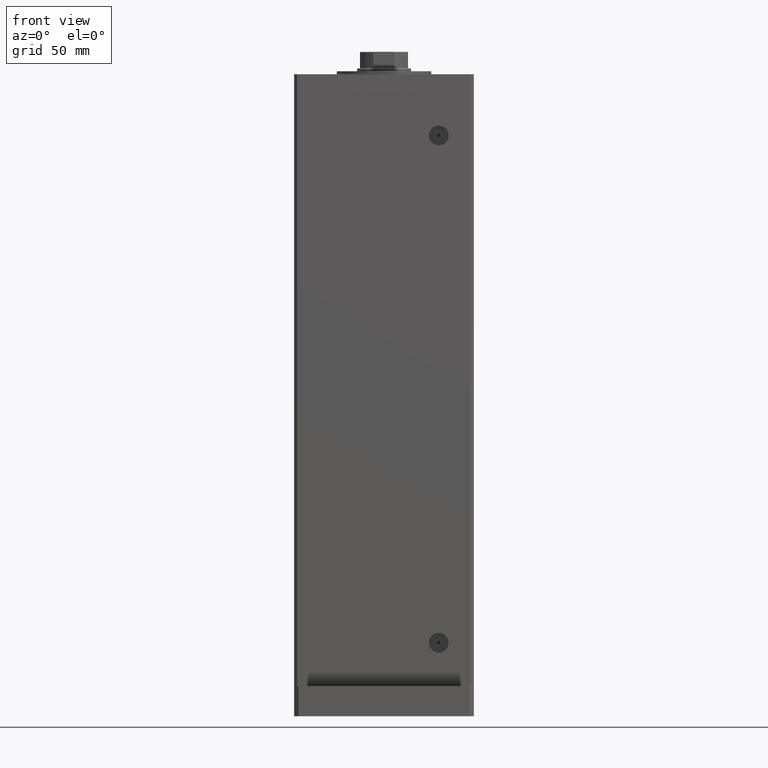
[diagram: clean part render]
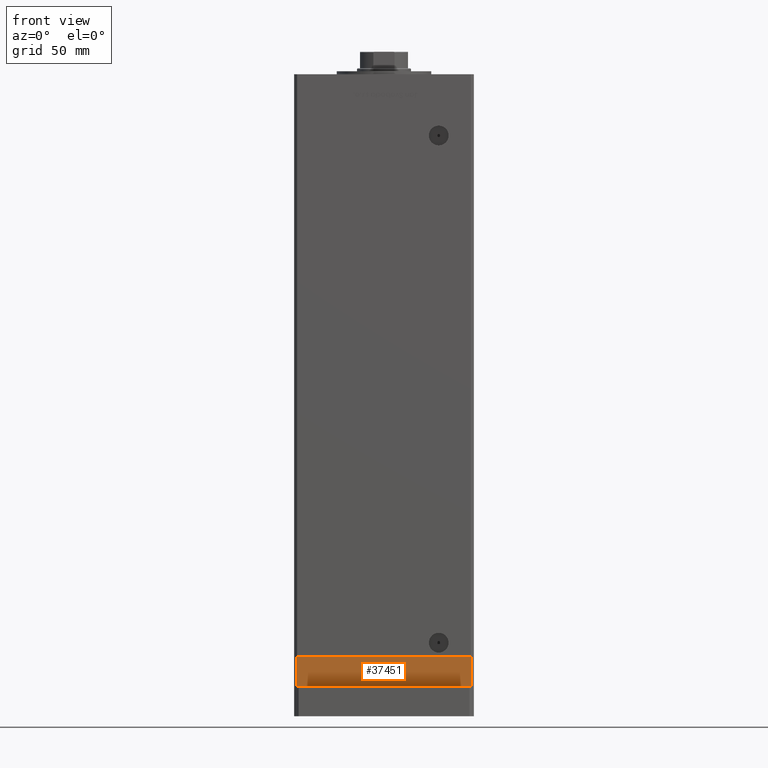
[diagram: same view with one face highlighted and labeled with its STEP entity id]
A machine part, front view. The second image highlights one B-rep face of the part: STEP entity #37451.
In plain terms, the highlighted planar face has unit normal (0, -1, -0).
Its self-contained STEP definition (entity closure, byte-faithful):
#1509 = ORIENTED_EDGE ( 'NONE', *, *, #47435, .T. ) ;
#1927 = EDGE_CURVE ( 'NONE', #43313, #23135, #31535, .T. ) ;
#2623 = ORIENTED_EDGE ( 'NONE', *, *, #1927, .F. ) ;
#5000 = CARTESIAN_POINT ( 'NONE',  ( -57.99999999999997868, -51.00000000000001421, -20.00000000000000000 ) ) ;
#6080 = CARTESIAN_POINT ( 'NONE',  ( -57.99999999999997868, -51.00000000000001421, 0.000000000000000000 ) ) ;
#6386 = DIRECTION ( 'NONE',  ( 1.000000000000000000, 1.196361017915039486E-16, 0.000000000000000000 ) ) ;
#8157 = AXIS2_PLACEMENT_3D ( 'NONE', #10463, #18875, #6386 ) ;
#10353 = CARTESIAN_POINT ( 'NONE',  ( 58.00000000000000000, -51.00000000000000711, -20.00000000000000000 ) ) ;
#10463 = CARTESIAN_POINT ( 'NONE',  ( -57.99999999999997868, -51.00000000000001421, -20.00000000000000000 ) ) ;
#18123 = CARTESIAN_POINT ( 'NONE',  ( -57.99999999999997868, -51.00000000000001421, -20.00000000000000000 ) ) ;
#18875 = DIRECTION ( 'NONE',  ( 1.196361017915039486E-16, -1.000000000000000000, 0.000000000000000000 ) ) ;
#18912 = LINE ( 'NONE', #35428, #50324 ) ;
#21545 = DIRECTION ( 'NONE',  ( 1.000000000000000000, 1.196361017915039486E-16, 0.000000000000000000 ) ) ;
#21713 = VECTOR ( 'NONE', #26082, 1000.000000000000000 ) ;
#23025 = ORIENTED_EDGE ( 'NONE', *, *, #23126, .T. ) ;
#23126 = EDGE_CURVE ( 'NONE', #26589, #23135, #51021, .T. ) ;
#23135 = VERTEX_POINT ( 'NONE', #44754 ) ;
#24646 = EDGE_CURVE ( 'NONE', #50811, #43313, #18912, .T. ) ;
#25606 = LINE ( 'NONE', #5000, #44087 ) ;
#26082 = DIRECTION ( 'NONE',  ( 0.000000000000000000, 0.000000000000000000, 1.000000000000000000 ) ) ;
#26589 = VERTEX_POINT ( 'NONE', #26626 ) ;
#26626 = CARTESIAN_POINT ( 'NONE',  ( 58.00000000000000000, -51.00000000000000711, -20.00000000000000000 ) ) ;
#26893 = EDGE_LOOP ( 'NONE', ( #2623, #38728, #1509, #23025 ) ) ;
#27529 = FACE_OUTER_BOUND ( 'NONE', #26893, .T. ) ;
#31535 = LINE ( 'NONE', #6080, #52418 ) ;
#34810 = DIRECTION ( 'NONE',  ( 1.000000000000000000, 1.196361017915039486E-16, 0.000000000000000000 ) ) ;
#35428 = CARTESIAN_POINT ( 'NONE',  ( -57.99999999999997868, -51.00000000000001421, -20.00000000000000000 ) ) ;
#37451 = ADVANCED_FACE ( 'NONE', ( #27529 ), #48133, .T. ) ;
#38728 = ORIENTED_EDGE ( 'NONE', *, *, #24646, .F. ) ;
#39000 = CARTESIAN_POINT ( 'NONE',  ( -57.99999999999997868, -51.00000000000001421, 0.000000000000000000 ) ) ;
#40024 = DIRECTION ( 'NONE',  ( 0.000000000000000000, 0.000000000000000000, 1.000000000000000000 ) ) ;
#43313 = VERTEX_POINT ( 'NONE', #39000 ) ;
#44087 = VECTOR ( 'NONE', #21545, 1000.000000000000000 ) ;
#44754 = CARTESIAN_POINT ( 'NONE',  ( 58.00000000000000000, -51.00000000000000711, 0.000000000000000000 ) ) ;
#47435 = EDGE_CURVE ( 'NONE', #50811, #26589, #25606, .T. ) ;
#48133 = PLANE ( 'NONE',  #8157 ) ;
#50324 = VECTOR ( 'NONE', #40024, 1000.000000000000000 ) ;
#50811 = VERTEX_POINT ( 'NONE', #18123 ) ;
#51021 = LINE ( 'NONE', #10353, #21713 ) ;
#52418 = VECTOR ( 'NONE', #34810, 1000.000000000000000 ) ;